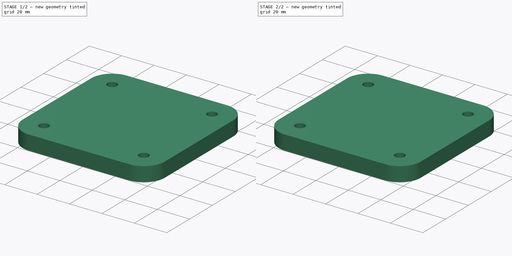
[diagram: build sequence overview — one tinted view per stage of 2, left to right]
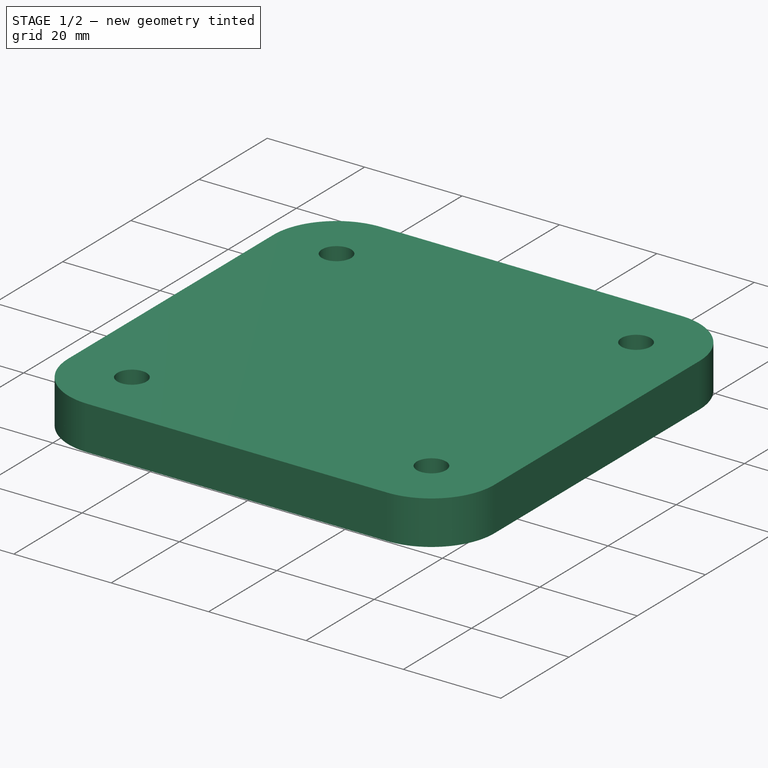
[diagram: stage 1 of 2 — iso view after this stage's code; geometry added in this stage tinted green]
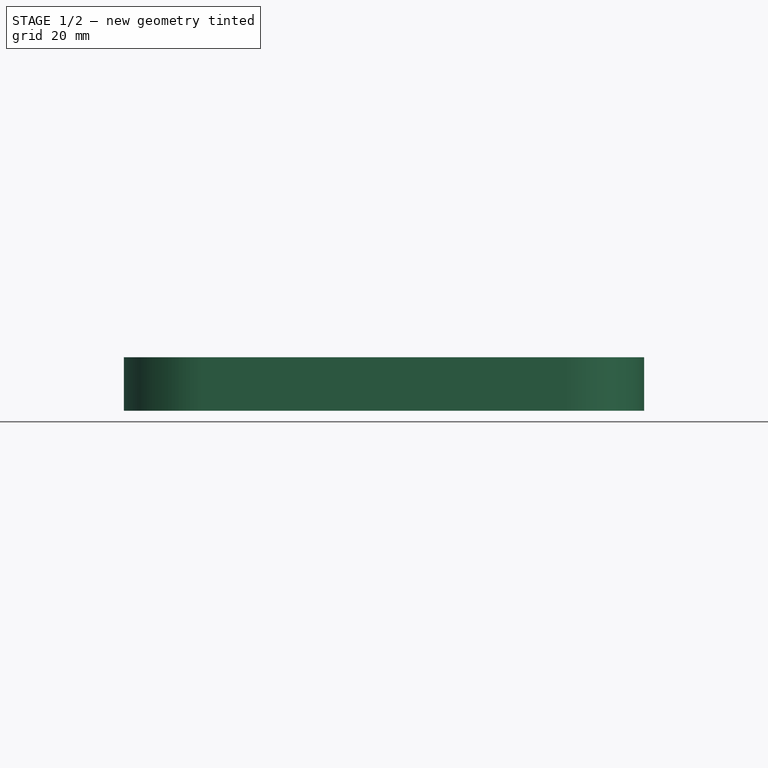
[diagram: stage 1 of 2 — front view after this stage's code; geometry added in this stage tinted green]
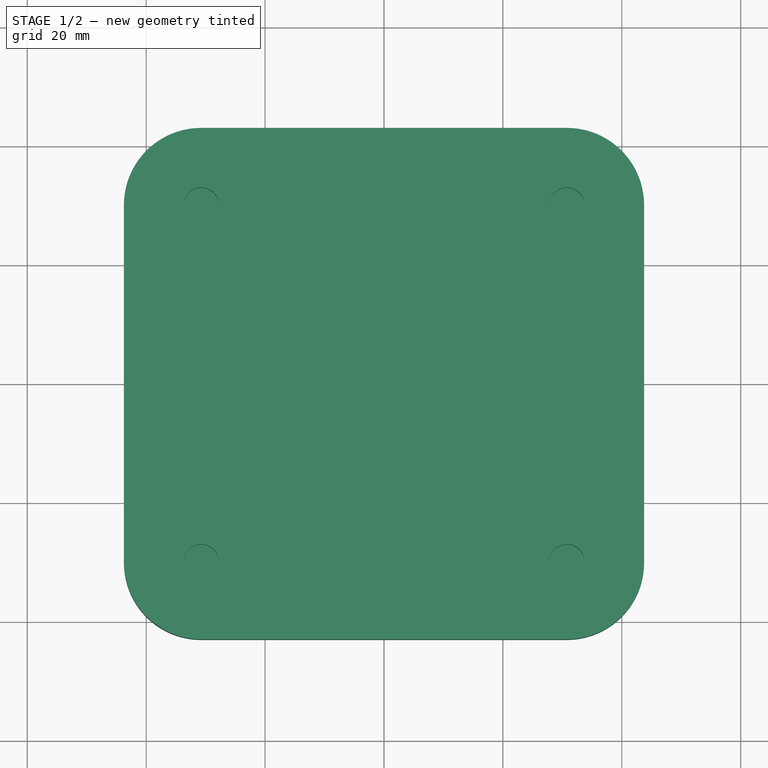
[diagram: stage 1 of 2 — top view after this stage's code; geometry added in this stage tinted green]
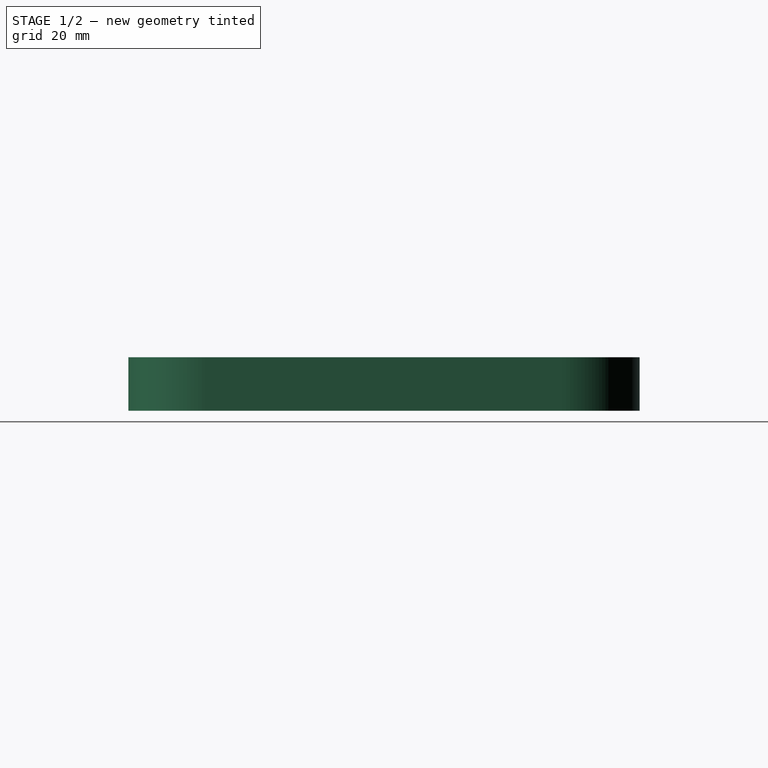
[diagram: stage 1 of 2 — right view after this stage's code; geometry added in this stage tinted green]
FCSTD DOCUMENT  (FreeCAD 0.14R3703 (Git))
Label: pletina_resina
License: CC-BY 3.0
LicenseURL: http://creativecommons.org/licenses/by/3.0/
objects: Sketcher::SketchObject×2, PartDesign::Pad×2, Part::Fuse×1, Part::Feature×1
note: 8 computed .brp shape members not serialized (recipe doc carries the construction recipe); baked Part::Feature solids carry a one-line shape summary decoded from their .brp

FEATURE [Sketcher::SketchObject] Sketch
  Placement = pos=(0,0,3) rot=(0,0,1;0rad)
  sketch-geometry (12):
    g0: LineSegment StartX=-30.7493 StartY=43.0028 StartZ=0 EndX=30.7492 EndY=43.0028 EndZ=0
    g1: LineSegment StartX=43.7493 StartY=30.0028 StartZ=0 EndX=43.7493 EndY=-30.0028 EndZ=0
    g2: LineSegment StartX=30.7493 StartY=-43.0028 StartZ=0 EndX=-30.7492 EndY=-43.0028 EndZ=0
    g3: LineSegment StartX=-43.7493 StartY=-30.0028 StartZ=0 EndX=-43.7493 EndY=30.0028 EndZ=0
    g4: ArcOfCircle CenterX=-30.7492 CenterY=30.0028 CenterZ=0 NormalX=0 NormalY=0 NormalZ=1 Radius=13 StartAngle=1.5708 EndAngle=3.14159
    g5: ArcOfCircle CenterX=30.7492 CenterY=30.0028 CenterZ=0 NormalX=0 NormalY=0 NormalZ=1 Radius=13 StartAngle=0 EndAngle=1.5708
    g6: ArcOfCircle CenterX=30.7492 CenterY=-30.0028 CenterZ=0 NormalX=0 NormalY=0 NormalZ=1 Radius=13 StartAngle=4.71239 EndAngle=6.28319
    g7: ArcOfCircle CenterX=-30.7492 CenterY=-30.0028 CenterZ=0 NormalX=0 NormalY=0 NormalZ=1 Radius=13 StartAngle=3.14159 EndAngle=4.71239
    g8: Circle CenterX=-30.7492 CenterY=30.0028 CenterZ=0 NormalX=0 NormalY=0 NormalZ=1 Radius=3
    g9: Circle CenterX=30.7492 CenterY=30.0028 CenterZ=0 NormalX=0 NormalY=0 NormalZ=1 Radius=3
    g10: Circle CenterX=-30.7492 CenterY=-30.0028 CenterZ=0 NormalX=0 NormalY=0 NormalZ=1 Radius=3
    g11: Circle CenterX=30.7492 CenterY=-30.0028 CenterZ=0 NormalX=0 NormalY=0 NormalZ=1 Radius=3
  constraints (28):
    c: Horizontal(g0)
    c: Horizontal(g2)
    c: Vertical(g1)
    c: Vertical(g3)
    c: Tangent(g0,g4)
    c: Tangent(g3,g4)
    c: Tangent(g0,g5)
    c: Tangent(g1,g5)
    c: Tangent(g1,g6)
    c: Tangent(g2,g6)
    c: Tangent(g2,g7)
    c: Tangent(g3,g7)
    c: Radius(g5) = 13
    c: DistanceX(g3,g1) = 87.4985
    c: DistanceY(g0,g2) = -86.0056
    c: Symmetric(g0,g0,g-2)
    c: Symmetric(g3,g3,g-1)
    c: Radius(g6) = 13
    c: Radius(g7) = 13
    c: Radius(g4) = 13
    c: Radius(g8) = 3
    c: Equal(g8,g9)
    c: Equal(g9,g11)
    c: Equal(g11,g10)
    c: Coincident(g11,g6)
    c: Coincident(g9,g5)
    c: Coincident(g8,g4)
    c: Coincident(g10,g7)
FEATURE [PartDesign::Pad] Pad
  Length = 6
  Length2 = 100
  Placement = pos=(0,0,3) rot=(0,0,1;0rad)
  Sketch = -> Sketch
  Type = 0
FEATURE [Sketcher::SketchObject] Sketch001
  sketch-geometry (8):
    g0: LineSegment StartX=-30.7493 StartY=43.0028 StartZ=0 EndX=30.7492 EndY=43.0028 EndZ=0
    g1: LineSegment StartX=43.7493 StartY=30.0028 StartZ=0 EndX=43.7493 EndY=-30.0028 EndZ=0
    g2: LineSegment StartX=30.7492 StartY=-43.0028 StartZ=0 EndX=-30.7492 EndY=-43.0028 EndZ=0
    g3: LineSegment StartX=-43.7493 StartY=-30.0028 StartZ=0 EndX=-43.7493 EndY=30.0028 EndZ=0
    g4: ArcOfCircle CenterX=-30.7492 CenterY=30.0028 CenterZ=0 NormalX=0 NormalY=0 NormalZ=1 Radius=13 StartAngle=1.5708 EndAngle=3.14159
    g5: ArcOfCircle CenterX=30.7492 CenterY=30.0028 CenterZ=0 NormalX=0 NormalY=0 NormalZ=1 Radius=13 StartAngle=0 EndAngle=1.5708
    g6: ArcOfCircle CenterX=30.7492 CenterY=-30.0028 CenterZ=0 NormalX=0 NormalY=0 NormalZ=1 Radius=13 StartAngle=4.71239 EndAngle=6.28319
    g7: ArcOfCircle CenterX=-30.7492 CenterY=-30.0028 CenterZ=0 NormalX=0 NormalY=0 NormalZ=1 Radius=13 StartAngle=3.14159 EndAngle=4.71239
  constraints (20):
    c: Horizontal(g0)
    c: Horizontal(g2)
    c: Vertical(g1)
    c: Vertical(g3)
    c: Tangent(g0,g4)
    c: Tangent(g3,g4)
    c: Tangent(g0,g5)
    c: Tangent(g1,g5)
    c: Tangent(g1,g6)
    c: Tangent(g2,g6)
    c: Tangent(g2,g7)
    c: Tangent(g3,g7)
    c: Radius(g5) = 13
    c: DistanceX(g3,g1) = 87.4985
    c: DistanceY(g0,g2) = -86.0056
    c: Symmetric(g0,g0,g-2)
    c: Symmetric(g3,g3,g-1)
    c: Radius(g6) = 13
    c: Radius(g7) = 13
    c: Radius(g4) = 13
FEATURE [PartDesign::Pad] Pad001
  Length = 3
  Length2 = 100
  Sketch = -> Sketch001
  Type = 0
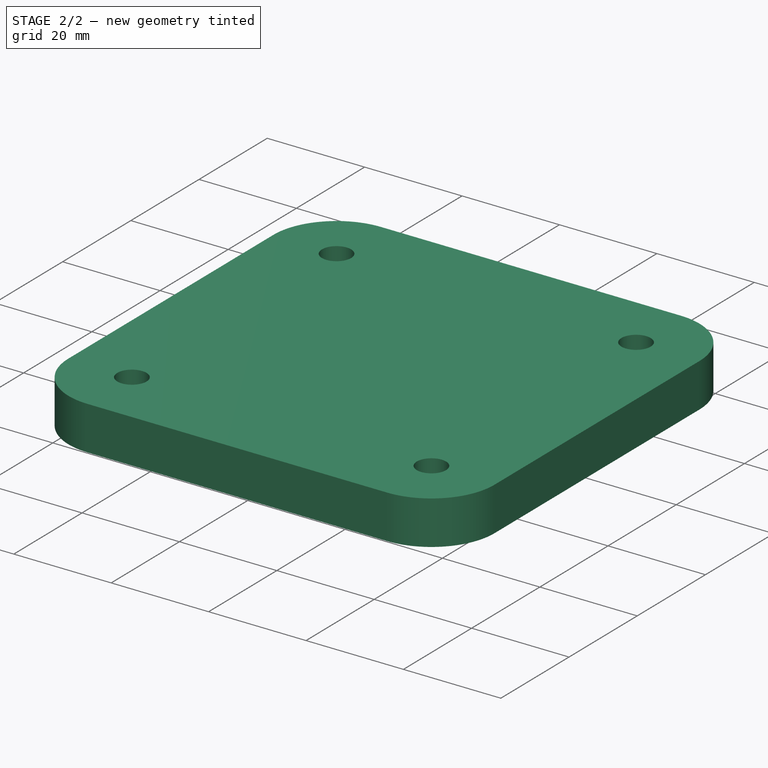
[diagram: stage 2 of 2 — iso view after this stage's code; geometry added in this stage tinted green]
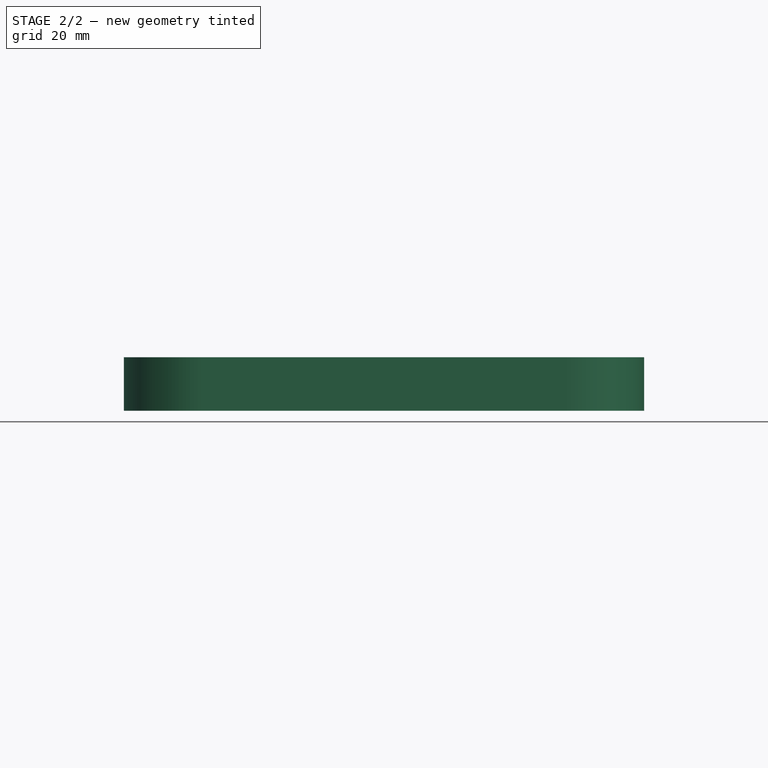
[diagram: stage 2 of 2 — front view after this stage's code; geometry added in this stage tinted green]
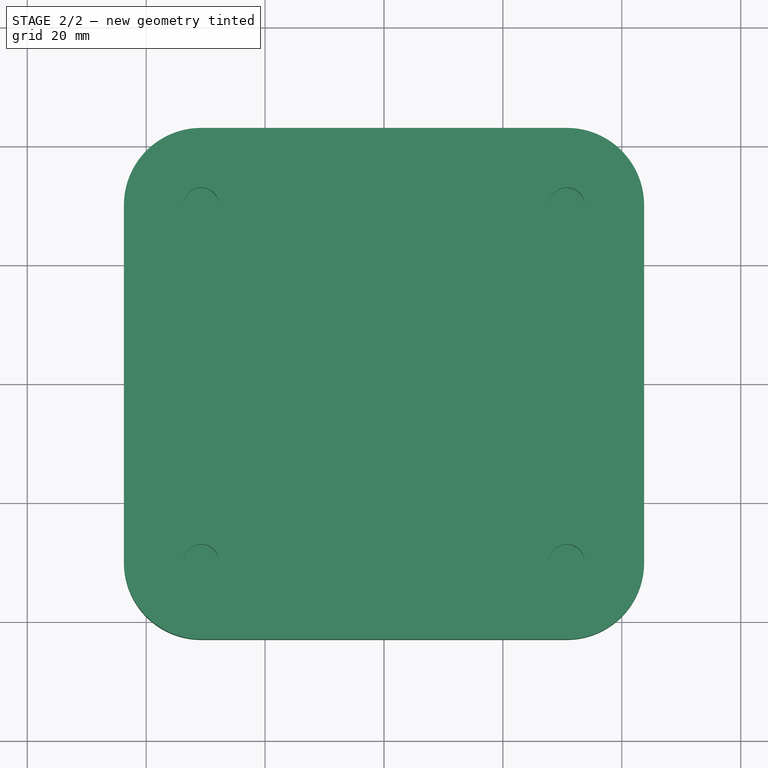
[diagram: stage 2 of 2 — top view after this stage's code; geometry added in this stage tinted green]
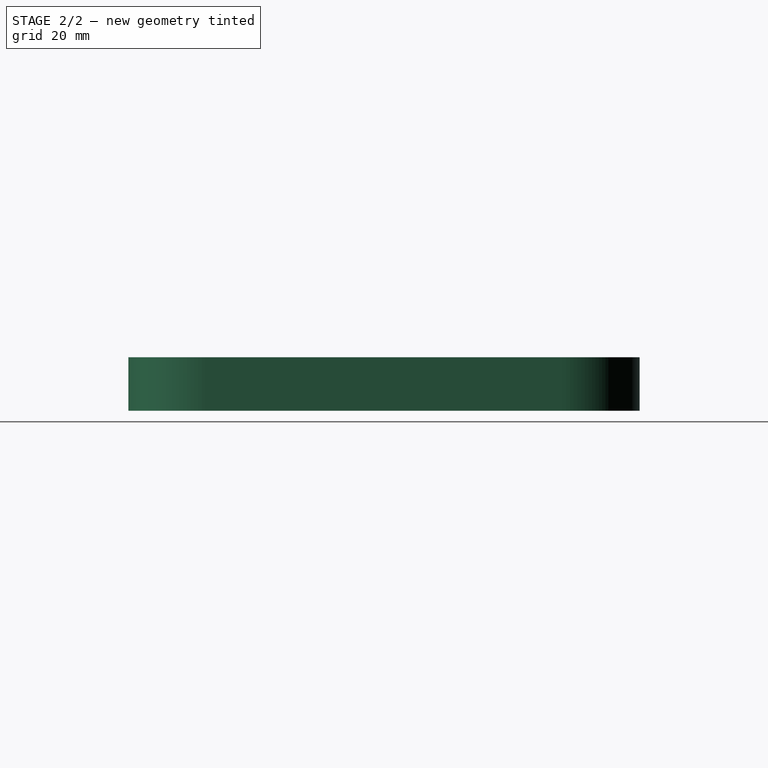
[diagram: stage 2 of 2 — right view after this stage's code; geometry added in this stage tinted green]
FEATURE [Part::Fuse] Fusion
  Base = -> Pad
  Tool = -> Pad001
FEATURE [Part::Feature] Fusion001  label="pletina_resina"
  shape: bbox 87.5 x 86.01 x 9 mm, 18 faces (baked)
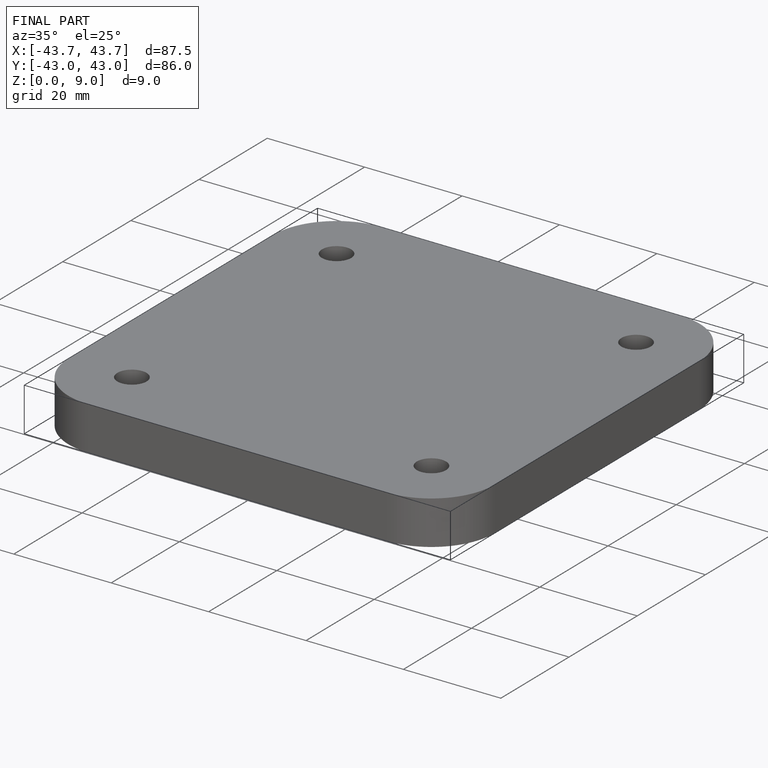
[diagram: finished part — iso view with bounding-box wireframe]
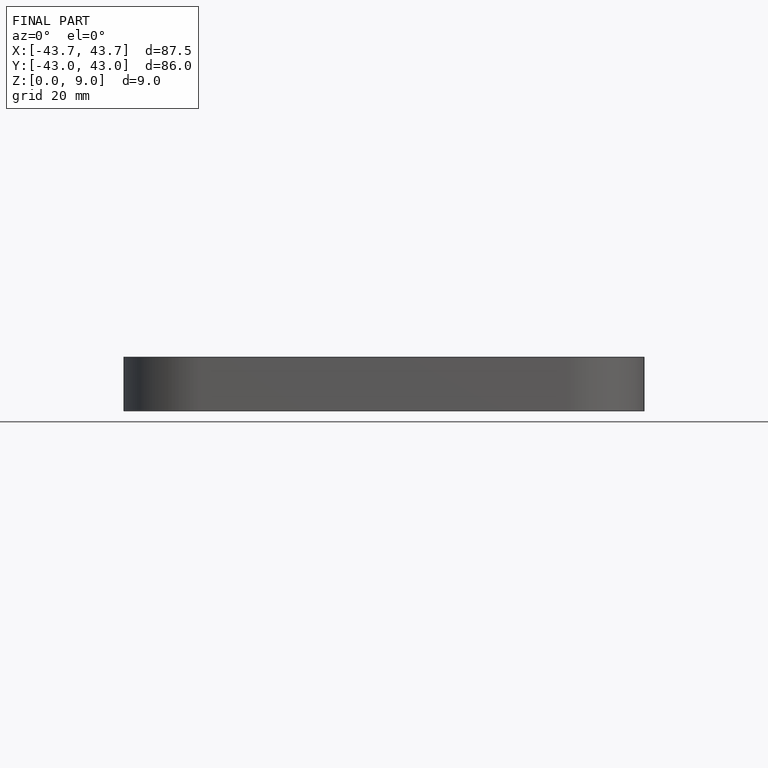
[diagram: finished part — front view with bounding-box wireframe]
